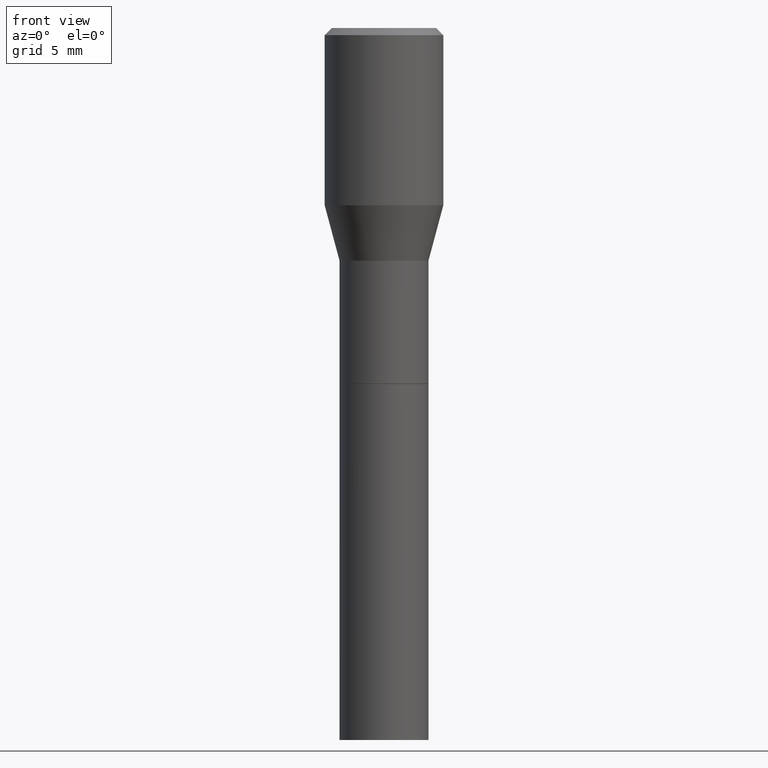
[diagram: clean part render]
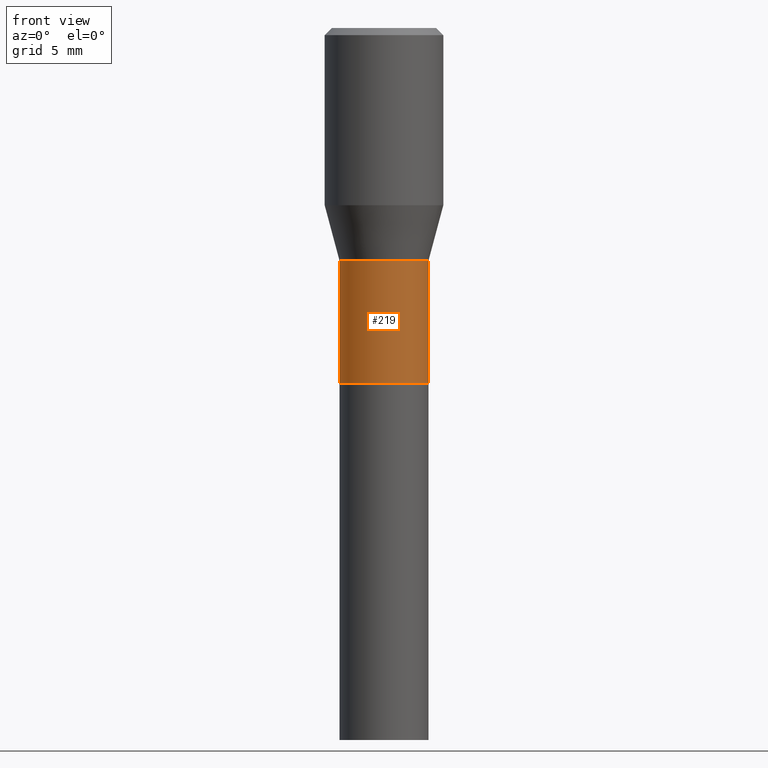
[diagram: same view with one face highlighted and labeled with its STEP entity id]
A machine part, front view. The second image highlights one B-rep face of the part: STEP entity #219.
In plain terms, the highlighted cylindrical surface (partial cylindrical patch) has radius 2.3813 mm, axis along (-0, 0, 1).
Its self-contained STEP definition (entity closure, byte-faithful):
#5 = CARTESIAN_POINT ( 'NONE',  ( 0.000000000000000000, 0.000000000000000000, 0.000000000000000000 ) ) ;
#12 = DIRECTION ( 'NONE',  ( -2.445468806185136597E-29, 3.491481338843145583E-15, 1.000000000000000000 ) ) ;
#17 = ORIENTED_EDGE ( 'NONE', *, *, #380, .T. ) ;
#31 = FACE_OUTER_BOUND ( 'NONE', #131, .T. ) ;
#59 = AXIS2_PLACEMENT_3D ( 'NONE', #265, #12, #327 ) ;
#72 = AXIS2_PLACEMENT_3D ( 'NONE', #418, #463, #356 ) ;
#113 = CARTESIAN_POINT ( 'NONE',  ( -0.09375000000000005551, -7.300699614480138057E-16, -0.4900000000000001577 ) ) ;
#115 = CARTESIAN_POINT ( 'NONE',  ( 0.09375000000000012490, -6.546527510330883916E-16, 4.571415727308696112E-30 ) ) ;
#120 = VERTEX_POINT ( 'NONE', #443 ) ;
#131 = EDGE_LOOP ( 'NONE', ( #264, #403, #17, #315 ) ) ;
#134 = DIRECTION ( 'NONE',  ( -2.445468806185136597E-29, 3.491481338843145583E-15, 1.000000000000000000 ) ) ;
#144 = DIRECTION ( 'NONE',  ( 1.000000000000000000, -6.982962677686266711E-15, 4.876176775795935793E-29 ) ) ;
#147 = CARTESIAN_POINT ( 'NONE',  ( 0.09375000000000005551, -2.365478607066230027E-15, -0.4900000000000001577 ) ) ;
#188 = CIRCLE ( 'NONE', #59, 0.09375000000000019429 ) ;
#193 = LINE ( 'NONE', #254, #317 ) ;
#219 = ADVANCED_FACE ( 'NONE', ( #31 ), #424, .T. ) ;
#223 = CARTESIAN_POINT ( 'NONE',  ( -0.09375000000000019429, -1.950731448687842083E-15, -0.7495000000000000551 ) ) ;
#224 = EDGE_CURVE ( 'NONE', #357, #426, #268, .T. ) ;
#241 = VECTOR ( 'NONE', #333, 39.37007874015748143 ) ;
#254 = CARTESIAN_POINT ( 'NONE',  ( -0.09375000000000012490, 6.661338147750948117E-16, -4.611501647113980301E-30 ) ) ;
#264 = ORIENTED_EDGE ( 'NONE', *, *, #338, .F. ) ;
#265 = CARTESIAN_POINT ( 'NONE',  ( 1.832878870235759926E-29, -2.616865263462937979E-15, -0.7495000000000000551 ) ) ;
#268 = CIRCLE ( 'NONE', #72, 0.09375000000000005551 ) ;
#303 = DIRECTION ( 'NONE',  ( -2.445468806185136877E-29, 3.491481338843145188E-15, 1.000000000000000000 ) ) ;
#315 = ORIENTED_EDGE ( 'NONE', *, *, #224, .F. ) ;
#317 = VECTOR ( 'NONE', #303, 39.37007874015748143 ) ;
#327 = DIRECTION ( 'NONE',  ( 1.000000000000000000, -6.982962677686269077E-15, 0.000000000000000000 ) ) ;
#333 = DIRECTION ( 'NONE',  ( -2.445468806185136877E-29, 3.491481338843145188E-15, 1.000000000000000000 ) ) ;
#335 = LINE ( 'NONE', #115, #241 ) ;
#338 = EDGE_CURVE ( 'NONE', #413, #357, #193, .T. ) ;
#347 = EDGE_CURVE ( 'NONE', #413, #120, #188, .T. ) ;
#356 = DIRECTION ( 'NONE',  ( 1.000000000000000000, -6.982962677686269077E-15, 0.000000000000000000 ) ) ;
#357 = VERTEX_POINT ( 'NONE', #113 ) ;
#380 = EDGE_CURVE ( 'NONE', #120, #426, #335, .T. ) ;
#403 = ORIENTED_EDGE ( 'NONE', *, *, #347, .T. ) ;
#413 = VERTEX_POINT ( 'NONE', #223 ) ;
#418 = CARTESIAN_POINT ( 'NONE',  ( 1.198279715030717314E-29, -1.710825856033141931E-15, -0.4900000000000001577 ) ) ;
#424 = CYLINDRICAL_SURFACE ( 'NONE', #449, 0.09375000000000012490 ) ;
#426 = VERTEX_POINT ( 'NONE', #147 ) ;
#443 = CARTESIAN_POINT ( 'NONE',  ( 0.09375000000000019429, -3.271518014496026667E-15, -0.7495000000000000551 ) ) ;
#449 = AXIS2_PLACEMENT_3D ( 'NONE', #5, #134, #144 ) ;
#463 = DIRECTION ( 'NONE',  ( -2.445468806185136597E-29, 3.491481338843145583E-15, 1.000000000000000000 ) ) ;